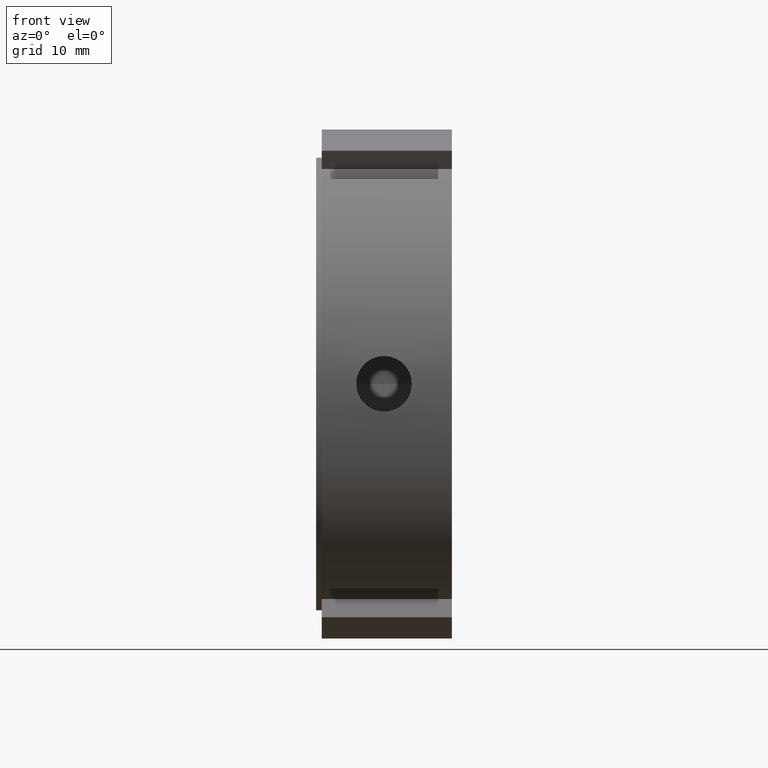
[diagram: clean part render]
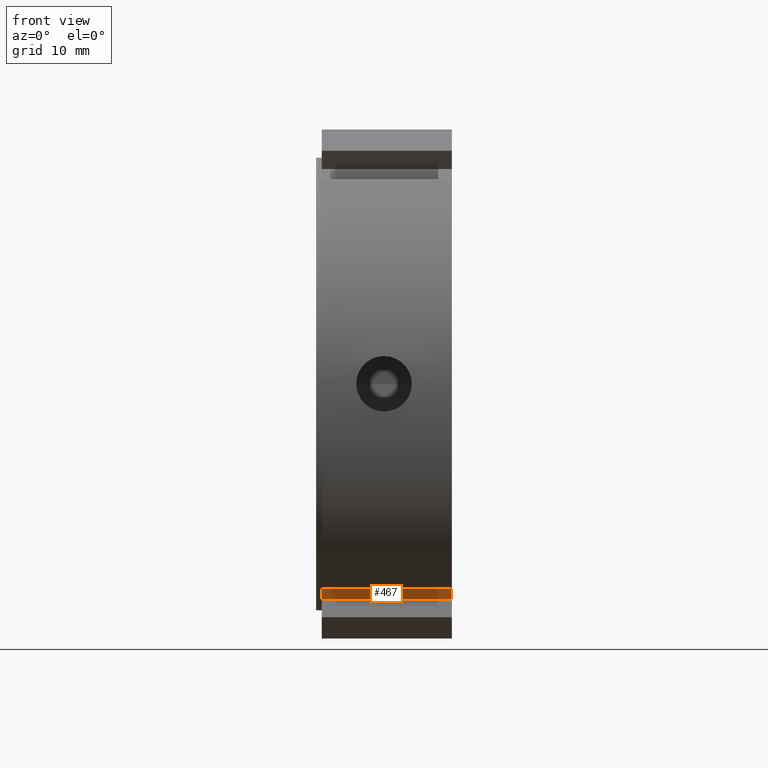
[diagram: same view with one face highlighted and labeled with its STEP entity id]
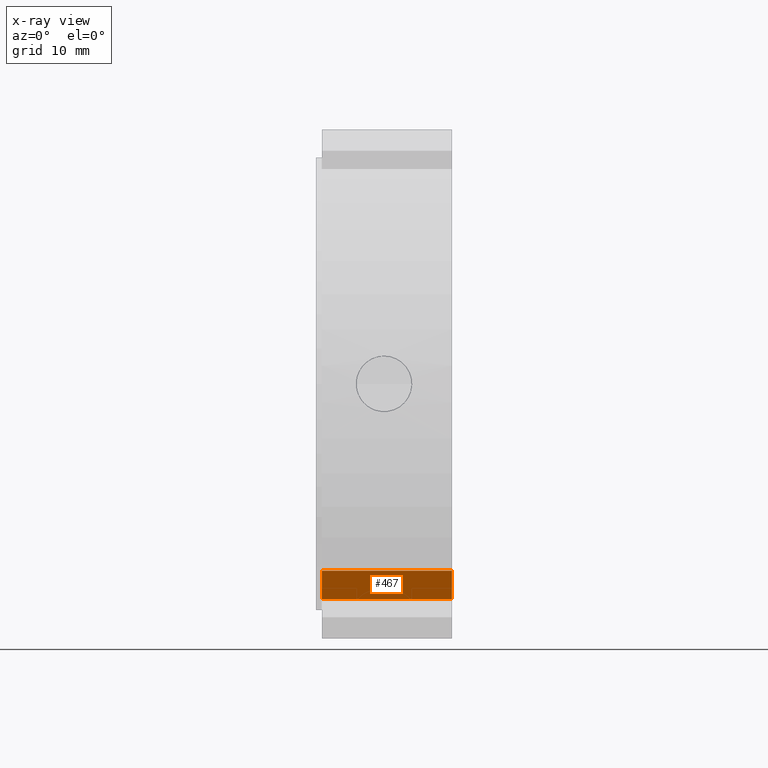
[diagram: x-ray of the same camera — body ghosted, the highlighted face saturated]
A machine part, front view. The second image highlights one B-rep face of the part: STEP entity #467.
The next image is the same camera in x-ray: the body ghosted, the highlighted face saturated — about 0% of this face is hidden behind the body in this view.
In plain terms, the highlighted planar face has unit normal (0, 0.5, 0.866).
Its self-contained STEP definition (entity closure, byte-faithful):
#246=CARTESIAN_POINT('',(11.999999999999996,-12.415063509461104,-16.503520777580988));
#247=VERTEX_POINT('',#246);
#254=CARTESIAN_POINT('',(11.999999999999996,-8.084936490538913,-19.003520777580988));
#255=VERTEX_POINT('',#254);
#256=CARTESIAN_POINT('',(11.999999999999996,-12.415063509461110,-16.503520777580988));
#257=DIRECTION('',(0.0,0.866025403784438,-0.500000000000000));
#258=VECTOR('',#257,4.999999999999998);
#259=LINE('',#256,#258);
#260=EDGE_CURVE('',#247,#255,#259,.T.);
#394=CARTESIAN_POINT('',(0.499999999999994,-12.415063509461104,-16.503520777580988));
#395=VERTEX_POINT('',#394);
#404=CARTESIAN_POINT('',(11.999999999999996,-12.415063509461104,-16.503520777580988));
#405=DIRECTION('',(-1.0,0.0,0.0));
#406=VECTOR('',#405,11.500000000000004);
#407=LINE('',#404,#406);
#408=EDGE_CURVE('',#247,#395,#407,.T.);
#427=CARTESIAN_POINT('',(0.499999999999994,-8.084936490538913,-19.003520777580988));
#428=VERTEX_POINT('',#427);
#442=CARTESIAN_POINT('',(11.999999999999996,-8.084936490538913,-19.003520777580988));
#443=DIRECTION('',(-1.0,0.0,0.0));
#444=VECTOR('',#443,11.500000000000004);
#445=LINE('',#442,#444);
#446=EDGE_CURVE('',#255,#428,#445,.T.);
#451=CARTESIAN_POINT('',(11.999999999999996,-8.084936490538913,-19.003520777580988));
#452=DIRECTION('',(0.0,0.500000000000001,0.866025403784438));
#453=DIRECTION('',(0.0,-0.866025403784438,0.500000000000000));
#454=AXIS2_PLACEMENT_3D('',#451,#452,#453);
#455=PLANE('',#454);
#456=CARTESIAN_POINT('',(0.499999999999993,-8.084936490538917,-19.003520777580988));
#457=DIRECTION('',(0.0,-0.866025403784438,0.500000000000000));
#458=VECTOR('',#457,4.999999999999998);
#459=LINE('',#456,#458);
#460=EDGE_CURVE('',#428,#395,#459,.T.);
#461=ORIENTED_EDGE('',*,*,#460,.F.);
#462=ORIENTED_EDGE('',*,*,#446,.F.);
#463=ORIENTED_EDGE('',*,*,#260,.F.);
#464=ORIENTED_EDGE('',*,*,#408,.T.);
#465=EDGE_LOOP('',(#461,#462,#463,#464));
#466=FACE_OUTER_BOUND('',#465,.T.);
#467=ADVANCED_FACE('',(#466),#455,.F.);